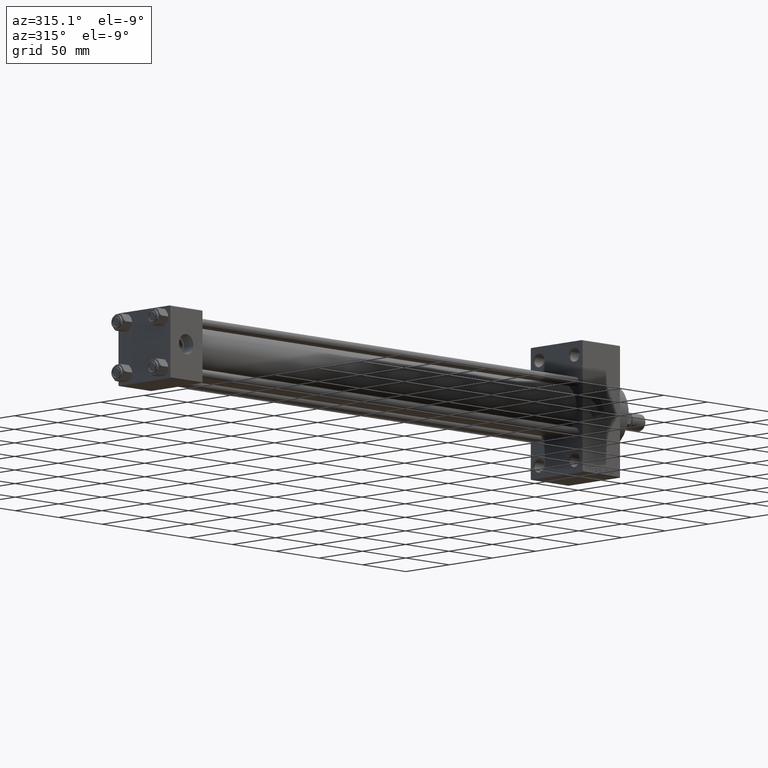
[diagram: clean part render]
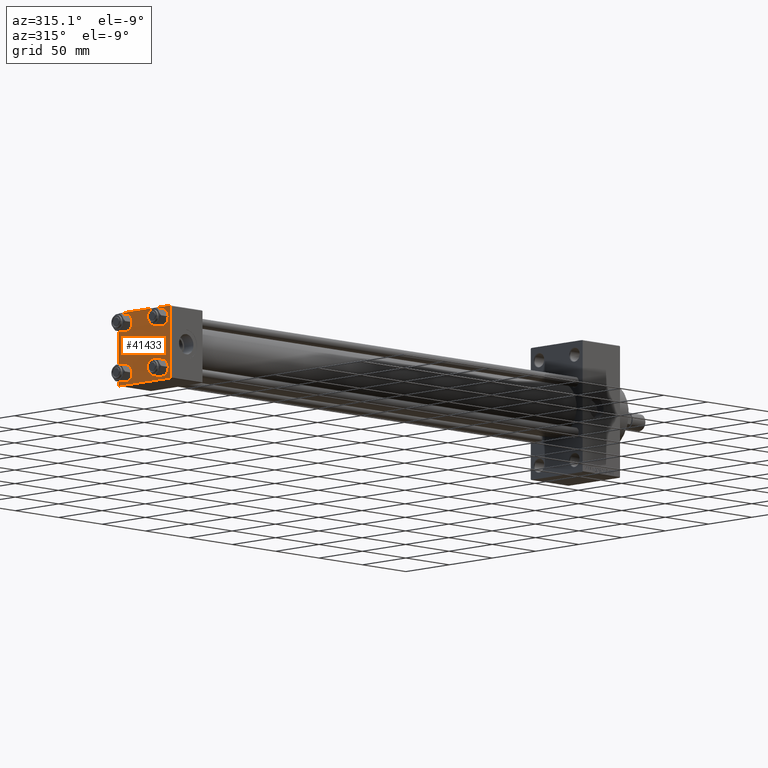
[diagram: same view with one face highlighted and labeled with its STEP entity id]
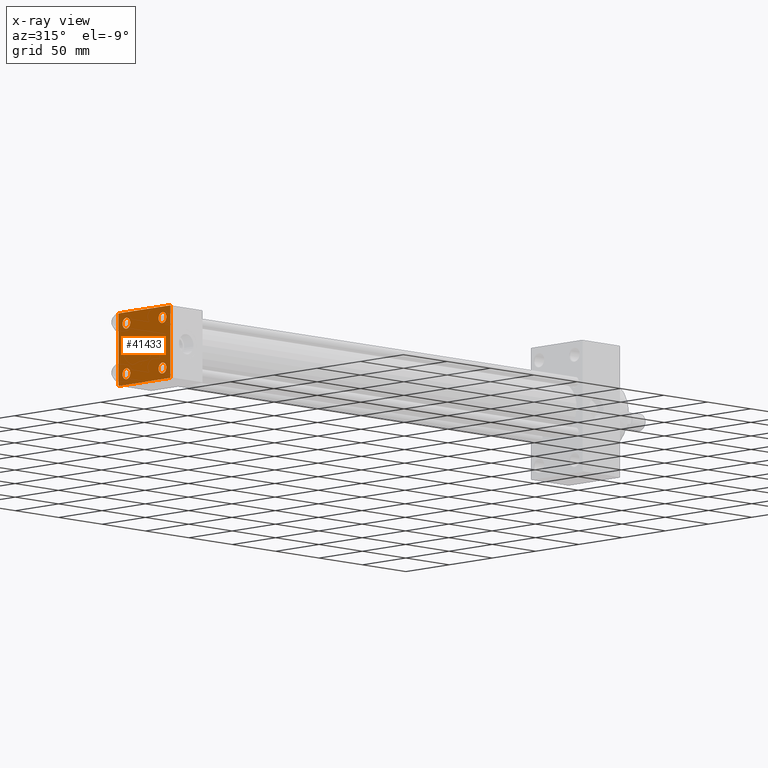
[diagram: x-ray of the same camera — body ghosted, the highlighted face saturated]
A machine part, auxiliary view. The second image highlights one B-rep face of the part: STEP entity #41433.
The next image is the same camera in x-ray: the body ghosted, the highlighted face saturated — about 0% of this face is hidden behind the body in this view.
In plain terms, the highlighted planar face has unit normal (-1, 0, 0).
Its self-contained STEP definition (entity closure, byte-faithful):
#358 = VERTEX_POINT ( 'NONE', #39245 ) ;
#381 = CARTESIAN_POINT ( 'NONE',  ( 0.000000000000000000, -20.84999999999999076, 20.85000000000000497 ) ) ;
#569 = EDGE_CURVE ( 'NONE', #43284, #13594, #10413, .T. ) ;
#742 = AXIS2_PLACEMENT_3D ( 'NONE', #1714, #13095, #28733 ) ;
#1179 = CARTESIAN_POINT ( 'NONE',  ( 0.000000000000000000, 20.84999999999999787, -16.34999999999998366 ) ) ;
#1714 = CARTESIAN_POINT ( 'NONE',  ( 0.000000000000000000, 0.000000000000000000, 0.000000000000000000 ) ) ;
#1808 = CARTESIAN_POINT ( 'NONE',  ( -0.000000000000000000, -29.74999999999999645, 29.74999999999999645 ) ) ;
#2423 = CARTESIAN_POINT ( 'NONE',  ( 0.000000000000000000, -20.84999999999999076, 16.34999999999998721 ) ) ;
#2461 = FACE_BOUND ( 'NONE', #3035, .T. ) ;
#2552 = CARTESIAN_POINT ( 'NONE',  ( 0.000000000000000000, -29.50000000000000000, -30.00000000000000711 ) ) ;
#3035 = EDGE_LOOP ( 'NONE', ( #50007, #7151 ) ) ;
#3146 = VECTOR ( 'NONE', #21839, 999.9999999999998863 ) ;
#3337 = CARTESIAN_POINT ( 'NONE',  ( 0.000000000000000000, 29.74999999999999645, 29.74999999999999645 ) ) ;
#4359 = CIRCLE ( 'NONE', #6780, 4.500000000000017764 ) ;
#4963 = AXIS2_PLACEMENT_3D ( 'NONE', #25685, #5757, #29475 ) ;
#5020 = LINE ( 'NONE', #20412, #43604 ) ;
#5348 = CARTESIAN_POINT ( 'NONE',  ( 0.000000000000000000, -20.84999999999999076, -20.85000000000000497 ) ) ;
#5363 = ORIENTED_EDGE ( 'NONE', *, *, #21547, .T. ) ;
#5421 = DIRECTION ( 'NONE',  ( 0.000000000000000000, -1.000000000000000000, -1.156482317317871725E-16 ) ) ;
#5757 = DIRECTION ( 'NONE',  ( 1.000000000000000000, -0.000000000000000000, 0.000000000000000000 ) ) ;
#6283 = EDGE_LOOP ( 'NONE', ( #27551, #18453, #28297, #29454, #7616, #17644, #13160, #21976 ) ) ;
#6711 = DIRECTION ( 'NONE',  ( 0.000000000000000000, 0.000000000000000000, 1.000000000000000000 ) ) ;
#6780 = AXIS2_PLACEMENT_3D ( 'NONE', #40822, #25415, #22343 ) ;
#7151 = ORIENTED_EDGE ( 'NONE', *, *, #26608, .T. ) ;
#7262 = EDGE_CURVE ( 'NONE', #10710, #41162, #48377, .T. ) ;
#7616 = ORIENTED_EDGE ( 'NONE', *, *, #14340, .F. ) ;
#7925 = VERTEX_POINT ( 'NONE', #18397 ) ;
#8201 = CIRCLE ( 'NONE', #4963, 4.500000000000017764 ) ;
#8968 = DIRECTION ( 'NONE',  ( 0.000000000000000000, 0.000000000000000000, 1.000000000000000000 ) ) ;
#9319 = LINE ( 'NONE', #16395, #43639 ) ;
#9793 = PLANE ( 'NONE',  #742 ) ;
#9884 = DIRECTION ( 'NONE',  ( 0.000000000000000000, 0.000000000000000000, 1.000000000000000000 ) ) ;
#10072 = EDGE_CURVE ( 'NONE', #18506, #47316, #33895, .T. ) ;
#10284 = FACE_BOUND ( 'NONE', #22807, .T. ) ;
#10413 = LINE ( 'NONE', #3337, #16821 ) ;
#10710 = VERTEX_POINT ( 'NONE', #40976 ) ;
#10946 = VERTEX_POINT ( 'NONE', #14654 ) ;
#11929 = EDGE_CURVE ( 'NONE', #13594, #10710, #9319, .T. ) ;
#12905 = CARTESIAN_POINT ( 'NONE',  ( 0.000000000000000000, -20.84999999999999076, 25.35000000000002274 ) ) ;
#13095 = DIRECTION ( 'NONE',  ( -1.000000000000000000, 0.000000000000000000, -0.000000000000000000 ) ) ;
#13160 = ORIENTED_EDGE ( 'NONE', *, *, #39668, .F. ) ;
#13191 = DIRECTION ( 'NONE',  ( -0.000000000000000000, 0.7071067811865474617, 0.7071067811865474617 ) ) ;
#13422 = EDGE_LOOP ( 'NONE', ( #37231, #44240 ) ) ;
#13500 = CARTESIAN_POINT ( 'NONE',  ( 0.000000000000000000, 29.49999999999999289, 30.00000000000000000 ) ) ;
#13594 = VERTEX_POINT ( 'NONE', #23818 ) ;
#13645 = CARTESIAN_POINT ( 'NONE',  ( 0.000000000000000000, 29.49999999999997868, -30.00000000000000000 ) ) ;
#14090 = FACE_BOUND ( 'NONE', #35568, .T. ) ;
#14220 = DIRECTION ( 'NONE',  ( 0.000000000000000000, 0.7071067811865474617, -0.7071067811865474617 ) ) ;
#14340 = EDGE_CURVE ( 'NONE', #358, #25803, #5020, .T. ) ;
#14495 = EDGE_CURVE ( 'NONE', #24872, #25803, #48443, .T. ) ;
#14654 = CARTESIAN_POINT ( 'NONE',  ( 0.000000000000000000, 20.84999999999999787, 25.35000000000001918 ) ) ;
#15023 = CARTESIAN_POINT ( 'NONE',  ( 0.000000000000000000, -29.75000000000001066, -29.75000000000001066 ) ) ;
#15041 = CARTESIAN_POINT ( 'NONE',  ( 0.000000000000000000, -20.84999999999999076, -25.35000000000002274 ) ) ;
#15456 = LINE ( 'NONE', #27063, #19920 ) ;
#15694 = VERTEX_POINT ( 'NONE', #2423 ) ;
#15750 = CARTESIAN_POINT ( 'NONE',  ( 0.000000000000000000, 20.84999999999999787, -25.35000000000001918 ) ) ;
#16395 = CARTESIAN_POINT ( 'NONE',  ( 0.000000000000000000, 29.99999999999999289, 30.00000000000000000 ) ) ;
#16781 = DIRECTION ( 'NONE',  ( 1.000000000000000000, -0.000000000000000000, 0.000000000000000000 ) ) ;
#16821 = VECTOR ( 'NONE', #14220, 1000.000000000000114 ) ;
#16979 = VECTOR ( 'NONE', #17371, 1000.000000000000114 ) ;
#17371 = DIRECTION ( 'NONE',  ( 0.000000000000000000, -0.7071067811865474617, 0.7071067811865474617 ) ) ;
#17573 = AXIS2_PLACEMENT_3D ( 'NONE', #43569, #16781, #8968 ) ;
#17620 = EDGE_CURVE ( 'NONE', #7925, #43074, #18687, .T. ) ;
#17644 = ORIENTED_EDGE ( 'NONE', *, *, #25743, .T. ) ;
#18327 = VERTEX_POINT ( 'NONE', #30478 ) ;
#18397 = CARTESIAN_POINT ( 'NONE',  ( 0.000000000000000000, -20.84999999999999076, -16.34999999999998721 ) ) ;
#18453 = ORIENTED_EDGE ( 'NONE', *, *, #7262, .T. ) ;
#18506 = VERTEX_POINT ( 'NONE', #15750 ) ;
#18535 = CIRCLE ( 'NONE', #33053, 4.500000000000017764 ) ;
#18687 = CIRCLE ( 'NONE', #35676, 4.500000000000017764 ) ;
#19206 = EDGE_CURVE ( 'NONE', #28377, #15694, #42948, .T. ) ;
#19746 = CIRCLE ( 'NONE', #45530, 4.500000000000017764 ) ;
#19920 = VECTOR ( 'NONE', #27570, 1000.000000000000000 ) ;
#20412 = CARTESIAN_POINT ( 'NONE',  ( 0.000000000000000000, -30.00000000000000000, 29.99999999999999289 ) ) ;
#20816 = CARTESIAN_POINT ( 'NONE',  ( 0.000000000000000000, 29.99999999999999289, 30.00000000000000000 ) ) ;
#21547 = EDGE_CURVE ( 'NONE', #10946, #18327, #4359, .T. ) ;
#21839 = DIRECTION ( 'NONE',  ( -0.000000000000000000, -0.7071067811865574537, -0.7071067811865376918 ) ) ;
#21976 = ORIENTED_EDGE ( 'NONE', *, *, #569, .T. ) ;
#22085 = DIRECTION ( 'NONE',  ( 0.000000000000000000, 0.000000000000000000, 1.000000000000000000 ) ) ;
#22343 = DIRECTION ( 'NONE',  ( 0.000000000000000000, 0.000000000000000000, 1.000000000000000000 ) ) ;
#22807 = EDGE_LOOP ( 'NONE', ( #5363, #46229 ) ) ;
#23818 = CARTESIAN_POINT ( 'NONE',  ( 0.000000000000000000, 29.99999999999999289, 29.50000000000000000 ) ) ;
#24872 = VERTEX_POINT ( 'NONE', #2552 ) ;
#25415 = DIRECTION ( 'NONE',  ( 1.000000000000000000, -0.000000000000000000, 0.000000000000000000 ) ) ;
#25685 = CARTESIAN_POINT ( 'NONE',  ( 0.000000000000000000, 20.84999999999999787, 20.85000000000000142 ) ) ;
#25686 = FACE_OUTER_BOUND ( 'NONE', #6283, .T. ) ;
#25743 = EDGE_CURVE ( 'NONE', #358, #35646, #36166, .T. ) ;
#25803 = VERTEX_POINT ( 'NONE', #30557 ) ;
#25883 = CARTESIAN_POINT ( 'NONE',  ( 0.000000000000000000, -20.84999999999999076, 20.85000000000000497 ) ) ;
#26608 = EDGE_CURVE ( 'NONE', #15694, #28377, #19746, .T. ) ;
#26751 = CARTESIAN_POINT ( 'NONE',  ( 0.000000000000000000, 20.84999999999999787, -20.85000000000000142 ) ) ;
#27063 = CARTESIAN_POINT ( 'NONE',  ( 0.000000000000000000, 29.99999999999999289, -30.00000000000000000 ) ) ;
#27312 = VECTOR ( 'NONE', #5421, 1000.000000000000000 ) ;
#27551 = ORIENTED_EDGE ( 'NONE', *, *, #11929, .T. ) ;
#27570 = DIRECTION ( 'NONE',  ( 0.000000000000000000, -1.000000000000000000, -1.156482317317871725E-16 ) ) ;
#28297 = ORIENTED_EDGE ( 'NONE', *, *, #33366, .T. ) ;
#28377 = VERTEX_POINT ( 'NONE', #12905 ) ;
#28733 = DIRECTION ( 'NONE',  ( -0.000000000000000000, 0.000000000000000000, 1.000000000000000000 ) ) ;
#29454 = ORIENTED_EDGE ( 'NONE', *, *, #14495, .T. ) ;
#29475 = DIRECTION ( 'NONE',  ( 0.000000000000000000, 0.000000000000000000, 1.000000000000000000 ) ) ;
#30478 = CARTESIAN_POINT ( 'NONE',  ( 0.000000000000000000, 20.84999999999999787, 16.34999999999998366 ) ) ;
#30557 = CARTESIAN_POINT ( 'NONE',  ( 0.000000000000000000, -30.00000000000000000, -29.50000000000001776 ) ) ;
#33023 = FACE_BOUND ( 'NONE', #13422, .T. ) ;
#33053 = AXIS2_PLACEMENT_3D ( 'NONE', #5348, #36413, #9884 ) ;
#33366 = EDGE_CURVE ( 'NONE', #41162, #24872, #15456, .T. ) ;
#33860 = AXIS2_PLACEMENT_3D ( 'NONE', #26751, #42163, #42665 ) ;
#33895 = CIRCLE ( 'NONE', #33860, 4.500000000000017764 ) ;
#35568 = EDGE_LOOP ( 'NONE', ( #48637, #44355 ) ) ;
#35607 = EDGE_CURVE ( 'NONE', #47316, #18506, #39366, .T. ) ;
#35646 = VERTEX_POINT ( 'NONE', #36972 ) ;
#35676 = AXIS2_PLACEMENT_3D ( 'NONE', #40807, #37513, #6711 ) ;
#36166 = LINE ( 'NONE', #1808, #44702 ) ;
#36413 = DIRECTION ( 'NONE',  ( 1.000000000000000000, -0.000000000000000000, 0.000000000000000000 ) ) ;
#36972 = CARTESIAN_POINT ( 'NONE',  ( 0.000000000000000000, -29.49999999999998579, 29.99999999999999289 ) ) ;
#37231 = ORIENTED_EDGE ( 'NONE', *, *, #35607, .T. ) ;
#37513 = DIRECTION ( 'NONE',  ( 1.000000000000000000, -0.000000000000000000, 0.000000000000000000 ) ) ;
#38265 = DIRECTION ( 'NONE',  ( 1.000000000000000000, -0.000000000000000000, 0.000000000000000000 ) ) ;
#38946 = AXIS2_PLACEMENT_3D ( 'NONE', #25883, #41301, #22085 ) ;
#39245 = CARTESIAN_POINT ( 'NONE',  ( 0.000000000000000000, -30.00000000000000000, 29.49999999999999289 ) ) ;
#39366 = CIRCLE ( 'NONE', #17573, 4.500000000000017764 ) ;
#39668 = EDGE_CURVE ( 'NONE', #43284, #35646, #44071, .T. ) ;
#40120 = DIRECTION ( 'NONE',  ( 0.000000000000000000, 0.000000000000000000, -1.000000000000000000 ) ) ;
#40807 = CARTESIAN_POINT ( 'NONE',  ( 0.000000000000000000, -20.84999999999999076, -20.85000000000000497 ) ) ;
#40822 = CARTESIAN_POINT ( 'NONE',  ( 0.000000000000000000, 20.84999999999999787, 20.85000000000000142 ) ) ;
#40976 = CARTESIAN_POINT ( 'NONE',  ( 0.000000000000000000, 29.99999999999999289, -29.50000000000000000 ) ) ;
#41162 = VERTEX_POINT ( 'NONE', #13645 ) ;
#41301 = DIRECTION ( 'NONE',  ( 1.000000000000000000, -0.000000000000000000, 0.000000000000000000 ) ) ;
#41433 = ADVANCED_FACE ( 'NONE', ( #2461, #14090, #33023, #10284, #25686 ), #9793, .T. ) ;
#42163 = DIRECTION ( 'NONE',  ( 1.000000000000000000, -0.000000000000000000, 0.000000000000000000 ) ) ;
#42314 = DIRECTION ( 'NONE',  ( 0.000000000000000000, 0.000000000000000000, 1.000000000000000000 ) ) ;
#42433 = EDGE_CURVE ( 'NONE', #43074, #7925, #18535, .T. ) ;
#42665 = DIRECTION ( 'NONE',  ( 0.000000000000000000, 0.000000000000000000, 1.000000000000000000 ) ) ;
#42948 = CIRCLE ( 'NONE', #38946, 4.500000000000017764 ) ;
#43074 = VERTEX_POINT ( 'NONE', #15041 ) ;
#43284 = VERTEX_POINT ( 'NONE', #13500 ) ;
#43569 = CARTESIAN_POINT ( 'NONE',  ( 0.000000000000000000, 20.84999999999999787, -20.85000000000000142 ) ) ;
#43604 = VECTOR ( 'NONE', #47448, 1000.000000000000000 ) ;
#43639 = VECTOR ( 'NONE', #40120, 1000.000000000000000 ) ;
#44071 = LINE ( 'NONE', #20816, #27312 ) ;
#44240 = ORIENTED_EDGE ( 'NONE', *, *, #10072, .T. ) ;
#44355 = ORIENTED_EDGE ( 'NONE', *, *, #42433, .T. ) ;
#44702 = VECTOR ( 'NONE', #13191, 1000.000000000000114 ) ;
#45082 = CARTESIAN_POINT ( 'NONE',  ( 0.000000000000000000, 29.74999999999957723, -29.75000000000040501 ) ) ;
#45530 = AXIS2_PLACEMENT_3D ( 'NONE', #381, #38265, #42314 ) ;
#46229 = ORIENTED_EDGE ( 'NONE', *, *, #49691, .T. ) ;
#47316 = VERTEX_POINT ( 'NONE', #1179 ) ;
#47448 = DIRECTION ( 'NONE',  ( 0.000000000000000000, 0.000000000000000000, -1.000000000000000000 ) ) ;
#48377 = LINE ( 'NONE', #45082, #3146 ) ;
#48443 = LINE ( 'NONE', #15023, #16979 ) ;
#48637 = ORIENTED_EDGE ( 'NONE', *, *, #17620, .T. ) ;
#49691 = EDGE_CURVE ( 'NONE', #18327, #10946, #8201, .T. ) ;
#50007 = ORIENTED_EDGE ( 'NONE', *, *, #19206, .T. ) ;